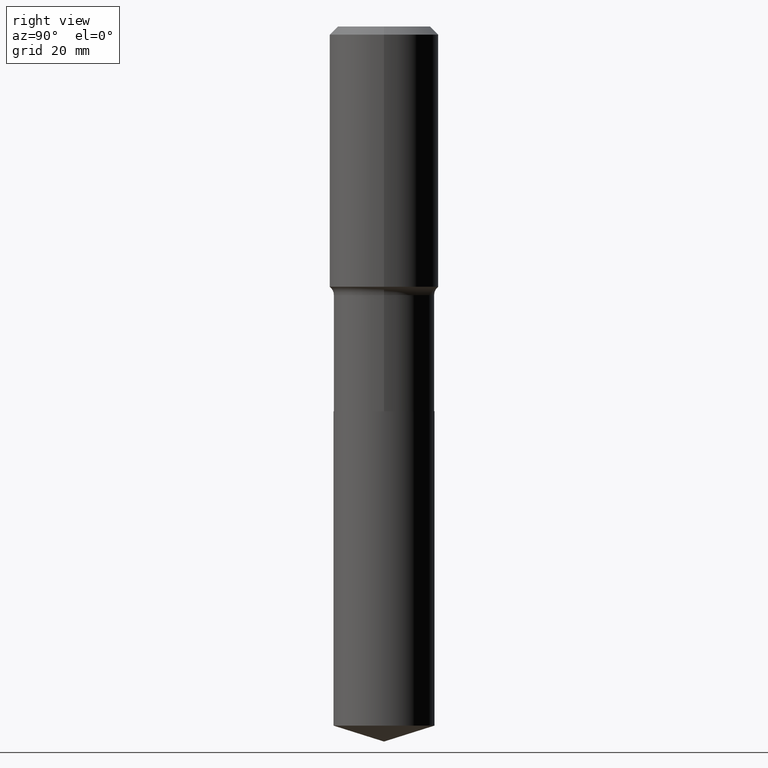
[diagram: clean part render]
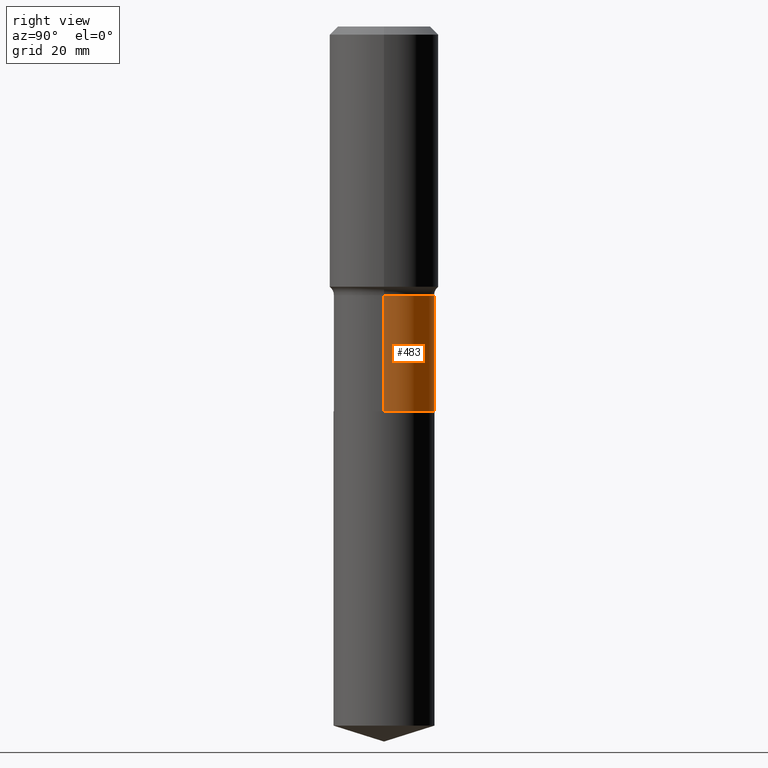
[diagram: same view with one face highlighted and labeled with its STEP entity id]
A machine part, right view. The second image highlights one B-rep face of the part: STEP entity #483.
In plain terms, the highlighted cylindrical surface (partial cylindrical patch) has radius 9.2494 mm, axis along (-0, 0, 1).
Its self-contained STEP definition (entity closure, byte-faithful):
#17 = CARTESIAN_POINT ( 'NONE',  ( -0.3641500000000000847, -5.640583550847350202E-15, -2.775099999999999678 ) ) ;
#20 = CARTESIAN_POINT ( 'NONE',  ( 4.739563093267412621E-29, -6.766839982811899557E-15, -1.938099999999999712 ) ) ;
#53 = DIRECTION ( 'NONE',  ( -2.445468806185136597E-29, 3.491481338843145583E-15, 1.000000000000000000 ) ) ;
#59 = DIRECTION ( 'NONE',  ( -2.445468806185136597E-29, 3.491481338843145583E-15, 1.000000000000000000 ) ) ;
#67 = ORIENTED_EDGE ( 'NONE', *, *, #386, .F. ) ;
#68 = EDGE_CURVE ( 'NONE', #440, #186, #109, .T. ) ;
#83 = CIRCLE ( 'NONE', #353, 0.3641500000000000847 ) ;
#109 = LINE ( 'NONE', #492, #119 ) ;
#112 = AXIS2_PLACEMENT_3D ( 'NONE', #465, #53, #280 ) ;
#115 = DIRECTION ( 'NONE',  ( -2.445468806185136877E-29, 3.491481338843145188E-15, 1.000000000000000000 ) ) ;
#119 = VECTOR ( 'NONE', #115, 39.37007874015748143 ) ;
#132 = VERTEX_POINT ( 'NONE', #231 ) ;
#133 = CYLINDRICAL_SURFACE ( 'NONE', #112, 0.3641499999999999737 ) ;
#143 = EDGE_LOOP ( 'NONE', ( #323, #279, #67, #404 ) ) ;
#156 = EDGE_CURVE ( 'NONE', #443, #132, #420, .T. ) ;
#157 = CARTESIAN_POINT ( 'NONE',  ( 0.3641499999999999737, -2.542845859079454001E-15, 1.775659772906089967E-29 ) ) ;
#176 = EDGE_CURVE ( 'NONE', #443, #440, #83, .T. ) ;
#186 = VERTEX_POINT ( 'NONE', #303 ) ;
#231 = CARTESIAN_POINT ( 'NONE',  ( 0.3641499999999999737, -9.309685841891353952E-15, -1.938099999999999712 ) ) ;
#233 = CARTESIAN_POINT ( 'NONE',  ( 6.786420484044372168E-29, -9.689209863423613283E-15, -2.775099999999999678 ) ) ;
#240 = DIRECTION ( 'NONE',  ( -2.445468806185136877E-29, 3.491481338843145188E-15, 1.000000000000000000 ) ) ;
#252 = FACE_OUTER_BOUND ( 'NONE', #143, .T. ) ;
#279 = ORIENTED_EDGE ( 'NONE', *, *, #68, .T. ) ;
#280 = DIRECTION ( 'NONE',  ( 1.000000000000000000, -6.982962677686267499E-15, 4.876176775795935793E-29 ) ) ;
#303 = CARTESIAN_POINT ( 'NONE',  ( -0.3641499999999999737, -5.640583550847350991E-15, -1.938099999999999712 ) ) ;
#323 = ORIENTED_EDGE ( 'NONE', *, *, #176, .T. ) ;
#338 = DIRECTION ( 'NONE',  ( 1.000000000000000000, -6.982962677686267499E-15, 0.000000000000000000 ) ) ;
#353 = AXIS2_PLACEMENT_3D ( 'NONE', #233, #381, #338 ) ;
#371 = AXIS2_PLACEMENT_3D ( 'NONE', #20, #59, #467 ) ;
#381 = DIRECTION ( 'NONE',  ( -2.445468806185136597E-29, 3.491481338843145583E-15, 1.000000000000000000 ) ) ;
#386 = EDGE_CURVE ( 'NONE', #132, #186, #430, .T. ) ;
#398 = VECTOR ( 'NONE', #240, 39.37007874015748143 ) ;
#404 = ORIENTED_EDGE ( 'NONE', *, *, #156, .F. ) ;
#420 = LINE ( 'NONE', #157, #398 ) ;
#426 = CARTESIAN_POINT ( 'NONE',  ( 0.3641500000000000847, -1.223205572250306768E-14, -2.775099999999999678 ) ) ;
#430 = CIRCLE ( 'NONE', #371, 0.3641499999999999737 ) ;
#440 = VERTEX_POINT ( 'NONE', #17 ) ;
#443 = VERTEX_POINT ( 'NONE', #426 ) ;
#465 = CARTESIAN_POINT ( 'NONE',  ( 0.000000000000000000, 0.000000000000000000, 0.000000000000000000 ) ) ;
#467 = DIRECTION ( 'NONE',  ( 1.000000000000000000, -6.982962677686267499E-15, 0.000000000000000000 ) ) ;
#483 = ADVANCED_FACE ( 'NONE', ( #252 ), #133, .T. ) ;
#492 = CARTESIAN_POINT ( 'NONE',  ( -0.3641499999999999737, 2.587441372270404640E-15, -1.791230213116323843E-29 ) ) ;